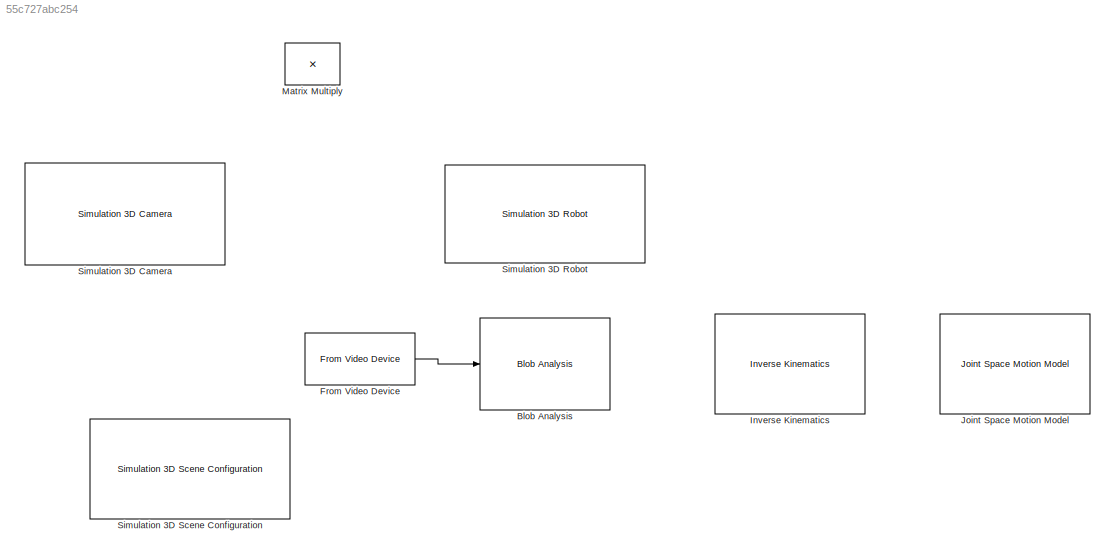
MODEL slx_55c727abc254
KIND model
CONFIG AbsTol = auto
CONFIG EnableMultiTasking = off
CONFIG FixedStep = auto
CONFIG MaxStep = auto
CONFIG MinStep = auto
CONFIG RelTol = 1e-3
CONFIG SampleTimeConstraint = Unconstrained
CONFIG SolverName = VariableStepAuto
CONFIG StartTime = 0.0
CONFIG StopTime = 10.0
BLOCK [Reference] Blob Analysis  REF=visionstatistics/Blob Analysis
  SourceBlock = visionstatistics/Blob Analysis
  SourceType = Blob Analysis
  Tag = vipblks_row_conv
BLOCK [Reference] From Video Device  REF=imaqlib/From Video Device
  SourceBlock = imaqlib/From Video Device
  SourceType = From Video Device
  UserDataPersistent = on
BLOCK [Reference] Inverse Kinematics  REF=robotmaniplib/Inverse Kinematics
  SourceBlock = robotmaniplib/Inverse Kinematics
  SourceType = Inverse Kinematics
BLOCK [Reference] Joint Space Motion Model  REF=robotmaniplib/Joint Space Motion Model
  SourceBlock = robotmaniplib/Joint Space Motion Model
  SourceType = Joint Space Motion Model
BLOCK [Product] Matrix Multiply
  Multiplication = Matrix(*)
BLOCK [Reference] Simulation 3D Camera  REF=sim3dcameralib/Simulation 3D Camera
  LibrarySourceBlock = robotsim3dlib/Simulation 3D Camera
  Priority = 1
  SourceBlock = sim3dcameralib/Simulation 3D Camera
  SourceType = Simulation 3D Camera
BLOCK [Reference] Simulation 3D Robot  REF=robotsim3dlib/Simulation 3D Robot
  SourceBlock = robotsim3dlib/Simulation 3D Robot
  SourceType = Simulation 3D Robot
BLOCK [Reference] Simulation 3D Scene Configuration  REF=sim3dlib/Simulation 3D Scene Configuration
  LibrarySourceBlock = robotsim3dlib/Simulation 3D Scene Configuration
  Priority = 0
  SourceBlock = sim3dlib/Simulation 3D Scene Configuration
  SourceType = Simulation 3D Scene Configuration
LINE From Video Device:1 -> Blob Analysis:1
